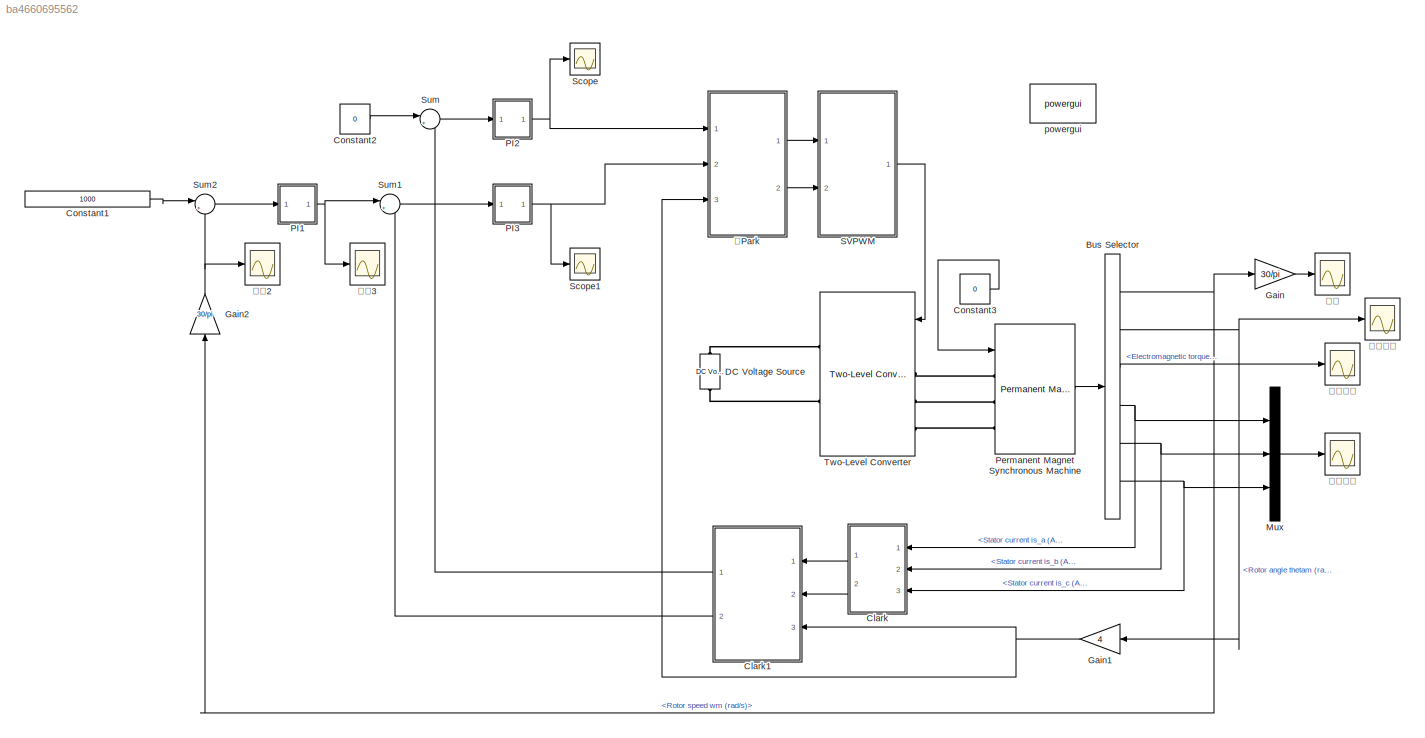
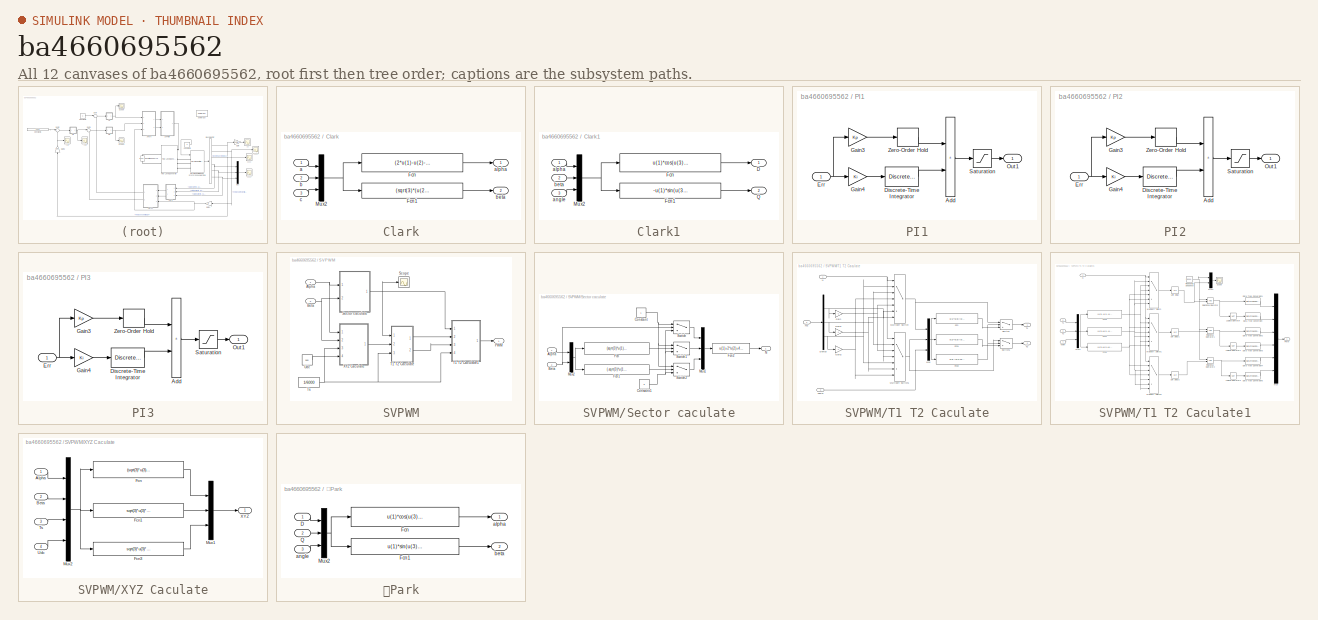
[diagram: thumbnail index - all 12 canvases of the model, root first then tree order]
MODEL slx_ba4660695562
KIND model
CONFIG AbsTol = auto
CONFIG EnableMultiTasking = on
CONFIG FixedStep = auto
CONFIG MaxStep = auto
CONFIG MinStep = auto
CONFIG RelTol = 1e-3
CONFIG SampleTimeConstraint = Unconstrained
CONFIG SolverName = VariableStepAuto
CONFIG StartTime = 0.0
CONFIG StopTime = 0.5
BLOCK [BusSelector] Bus Selector
  OutputSignals = Rotor speed wm (rad/s),Rotor angle thetam (rad),Electromagnetic torque Te (N*m),Stator current is_a (A),Stator current is_b (A),Stator current is_c (A)
  Ports = [1, 6]
BLOCK [SubSystem] Clark
  NameLocation = top
  Ports = [3, 2]
  RequestExecContextInheritance = off
BLOCK [Fcn] Clark/Fcn
  Expr = (2*u(1)-u(2)-u(3))/3
BLOCK [Fcn] Clark/Fcn1
  Expr = (sqrt(3)*(u(2)-u(3)))/3
BLOCK [Mux] Clark/Mux2
  DisplayOption = bar
  Inputs = 3
  Ports = [3, 1]
BLOCK [Inport] Clark/a
BLOCK [Outport] Clark/alpha
BLOCK [Inport] Clark/b
  Port = 2
BLOCK [Outport] Clark/beta
  Port = 2
BLOCK [Inport] Clark/c
  Port = 3
BLOCK [SubSystem] Clark1
  NameLocation = top
  Ports = [3, 2]
  RequestExecContextInheritance = off
BLOCK [Outport] Clark1/D
BLOCK [Fcn] Clark1/Fcn
  Expr = u(1)*cos(u(3))+u(2)*sin(u(3))
BLOCK [Fcn] Clark1/Fcn1
  Expr = -u(1)*sin(u(3))+u(2)*cos(u(3))
BLOCK [Mux] Clark1/Mux2
  DisplayOption = bar
  Inputs = 3
  Ports = [3, 1]
BLOCK [Outport] Clark1/Q
  Port = 2
BLOCK [Inport] Clark1/alpha
BLOCK [Inport] Clark1/angle
  Port = 3
BLOCK [Inport] Clark1/beta
  Port = 2
BLOCK [Constant] Constant1
  Value = 1000
BLOCK [Constant] Constant2
  Value = 0
BLOCK [Constant] Constant3
  Value = 0
BLOCK [Reference] DC Voltage Source  REF=spsDCVoltageSourceLib/DC Voltage Source
  NameLocation = right
  Ports = [0, 0, 0, 0, 0, 1, 1]
  SourceBlock = spsDCVoltageSourceLib/DC Voltage Source
  SourceProductBaseCode = PS
  SourceType = DC Voltage Source
BLOCK [Gain] Gain
  Gain = 30/pi
BLOCK [Gain] Gain1
  Gain = 4
  NameLocation = top
BLOCK [Gain] Gain2
  Gain = 30/pi
  NameLocation = right
BLOCK [Mux] Mux
  DisplayOption = bar
  Inputs = 3
  Ports = [3, 1]
BLOCK [SubSystem] PI1
  Ports = [1, 1]
  RequestExecContextInheritance = off
BLOCK [Sum] PI1/Add
  IconShape = rectangular
  Ports = [2, 1]
BLOCK [DiscreteIntegrator] PI1/Discrete-Time Integrator
  ICPrevOutput = DiscIntNeverNeededParam
  ICPrevScaledInput = DiscIntNeverNeededParam
  InitialCondition = Init
  LimitOutput = on
  LowerSaturationLimit = Lowerlimit
  Ports = [1, 1]
  SampleTime = Ts
  UpperSaturationLimit = Upperlimit
BLOCK [Inport] PI1/Err
BLOCK [Gain] PI1/Gain3
  Gain = Kp
BLOCK [Gain] PI1/Gain4
  Gain = Ki
BLOCK [Outport] PI1/Out1
BLOCK [Saturate] PI1/Saturation
  LowerLimit = Lowerlimit
  UpperLimit = Upperlimit
BLOCK [ZeroOrderHold] PI1/Zero-Order Hold
  SampleTime = Ts
BLOCK [SubSystem] PI2
  Ports = [1, 1]
  RequestExecContextInheritance = off
BLOCK [Sum] PI2/Add
  IconShape = rectangular
  Ports = [2, 1]
BLOCK [DiscreteIntegrator] PI2/Discrete-Time Integrator
  ICPrevOutput = DiscIntNeverNeededParam
  ICPrevScaledInput = DiscIntNeverNeededParam
  InitialCondition = Init
  LimitOutput = on
  LowerSaturationLimit = Lowerlimit
  Ports = [1, 1]
  SampleTime = Ts
  UpperSaturationLimit = Upperlimit
BLOCK [Inport] PI2/Err
BLOCK [Gain] PI2/Gain3
  Gain = Kp
BLOCK [Gain] PI2/Gain4
  Gain = Ki
BLOCK [Outport] PI2/Out1
BLOCK [Saturate] PI2/Saturation
  LowerLimit = Lowerlimit
  UpperLimit = Upperlimit
BLOCK [ZeroOrderHold] PI2/Zero-Order Hold
  SampleTime = Ts
BLOCK [SubSystem] PI3
  Ports = [1, 1]
  RequestExecContextInheritance = off
BLOCK [Sum] PI3/Add
  IconShape = rectangular
  Ports = [2, 1]
BLOCK [DiscreteIntegrator] PI3/Discrete-Time Integrator
  ICPrevOutput = DiscIntNeverNeededParam
  ICPrevScaledInput = DiscIntNeverNeededParam
  InitialCondition = Init
  LimitOutput = on
  LowerSaturationLimit = Lowerlimit
  Ports = [1, 1]
  SampleTime = Ts
  UpperSaturationLimit = Upperlimit
BLOCK [Inport] PI3/Err
BLOCK [Gain] PI3/Gain3
  Gain = Kp
BLOCK [Gain] PI3/Gain4
  Gain = Ki
BLOCK [Outport] PI3/Out1
BLOCK [Saturate] PI3/Saturation
  LowerLimit = Lowerlimit
  UpperLimit = Upperlimit
BLOCK [ZeroOrderHold] PI3/Zero-Order Hold
  SampleTime = Ts
BLOCK [Reference] Permanent Magnet Synchronous Machine  REF=spsPermanentMagnetSynchronousMachineLib/Permanent Magnet
Synchronous Machine
  Ports = [1, 1, 0, 0, 0, 3]
  SourceBlock = spsPermanentMagnetSynchronousMachineLib/Permanent Magnet\nSynchronous Machine
  SourceProductBaseCode = PS
  SourceType = Permanent Magnet Synchronous Machine
BLOCK [SubSystem] SVPWM
  Ports = [2, 1]
  RequestExecContextInheritance = off
BLOCK [Inport] SVPWM/Alpha
BLOCK [Inport] SVPWM/Beta
  Port = 2
BLOCK [Outport] SVPWM/PWM
BLOCK [Scope] SVPWM/Scope
  Floating = off
  NumInputPorts = 1
  Ports = [1]
  ScopeSpecificationString = Simulink.scopes.TimeScopeBlockCfg('CurrentConfiguration', extmgr.ConfigurationSet(extmgr.Configuration('Core','General UI',true),extmgr.Configuration('Core','Source UI',true),extmgr.Configuration('Sources','WiredSimulink',true,'DataLoggingVariableName','ScopeData6'),extmgr.Configuration('Visuals','Time Domain',true,'SerializedDisplays',{struct('MinYLimReal','0.375','MaxYLimReal','6.625','YLabelRea...<+1356ch>
BLOCK [SubSystem] SVPWM/Sector caculate
  Ports = [2, 1]
  RequestExecContextInheritance = off
BLOCK [Inport] SVPWM/Sector caculate/Alpha
BLOCK [Inport] SVPWM/Sector caculate/Beta
  Port = 2
BLOCK [Constant] SVPWM/Sector caculate/Constant
BLOCK [Constant] SVPWM/Sector caculate/Constant1
  Value = 0
BLOCK [Fcn] SVPWM/Sector caculate/Fcn
  Expr = (sqrt(3)*u(1)-u(2))/2
BLOCK [Fcn] SVPWM/Sector caculate/Fcn1
  Expr = (-sqrt(3)*u(1)-u(2))/2
BLOCK [Fcn] SVPWM/Sector caculate/Fcn2
  Expr = u(1)+2*u(2)+4*u(3)
BLOCK [Mux] SVPWM/Sector caculate/Mux1
  DisplayOption = bar
  Inputs = 3
  Ports = [3, 1]
BLOCK [Mux] SVPWM/Sector caculate/Mux2
  DisplayOption = bar
  Inputs = 2
  Ports = [2, 1]
BLOCK [Outport] SVPWM/Sector caculate/N
BLOCK [Switch] SVPWM/Sector caculate/Switch
  Criteria = u2 > Threshold
  InputSameDT = off
  SaturateOnIntegerOverflow = off
BLOCK [Switch] SVPWM/Sector caculate/Switch1
  Criteria = u2 > Threshold
  InputSameDT = off
  SaturateOnIntegerOverflow = off
BLOCK [Switch] SVPWM/Sector caculate/Switch2
  Criteria = u2 > Threshold
  InputSameDT = off
  SaturateOnIntegerOverflow = off
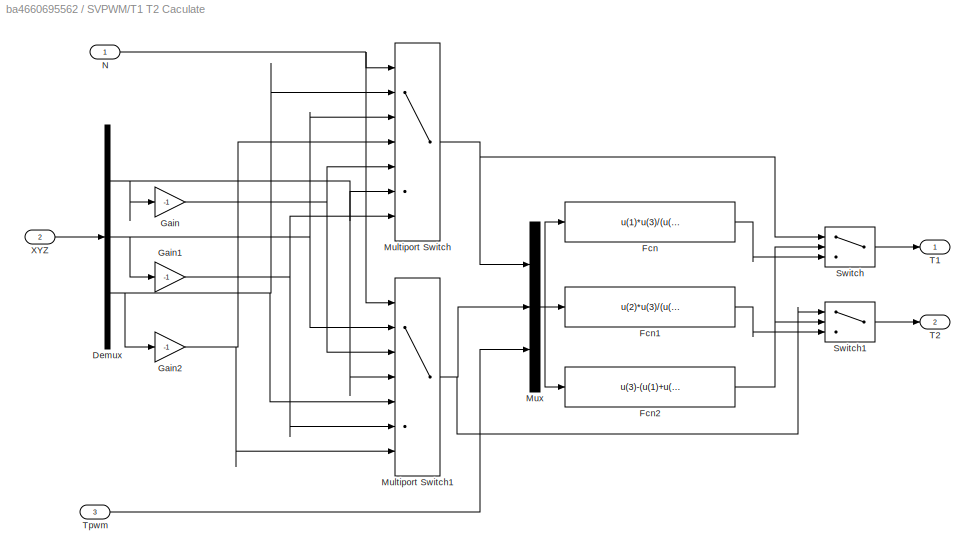
BLOCK [SubSystem] SVPWM/T1 T2 Caculate
  Ports = [3, 2]
  RequestExecContextInheritance = off
BLOCK [Demux] SVPWM/T1 T2 Caculate/Demux
  Outputs = 3
  Ports = [1, 3]
BLOCK [Fcn] SVPWM/T1 T2 Caculate/Fcn
  Expr = u(1)*u(3)/(u(1)+u(2))
BLOCK [Fcn] SVPWM/T1 T2 Caculate/Fcn1
  Expr = u(2)*u(3)/(u(1)+u(2))
BLOCK [Fcn] SVPWM/T1 T2 Caculate/Fcn2
  Expr = u(3)-(u(1)+u(2))
BLOCK [Gain] SVPWM/T1 T2 Caculate/Gain
  Gain = -1
BLOCK [Gain] SVPWM/T1 T2 Caculate/Gain1
  Gain = -1
BLOCK [Gain] SVPWM/T1 T2 Caculate/Gain2
  Gain = -1
BLOCK [MultiPortSwitch] SVPWM/T1 T2 Caculate/Multiport Switch
  InputSameDT = off
  Inputs = 6
  Ports = [7, 1]
  SaturateOnIntegerOverflow = off
BLOCK [MultiPortSwitch] SVPWM/T1 T2 Caculate/Multiport Switch1
  InputSameDT = off
  Inputs = 6
  Ports = [7, 1]
  SaturateOnIntegerOverflow = off
BLOCK [Mux] SVPWM/T1 T2 Caculate/Mux
  DisplayOption = bar
  Inputs = 3
  Ports = [3, 1]
BLOCK [Inport] SVPWM/T1 T2 Caculate/N
BLOCK [Switch] SVPWM/T1 T2 Caculate/Switch
  Criteria = u2 > Threshold
  InputSameDT = off
  SaturateOnIntegerOverflow = off
BLOCK [Switch] SVPWM/T1 T2 Caculate/Switch1
  Criteria = u2 > Threshold
  InputSameDT = off
  SaturateOnIntegerOverflow = off
BLOCK [Outport] SVPWM/T1 T2 Caculate/T1
BLOCK [Outport] SVPWM/T1 T2 Caculate/T2
  Port = 2
BLOCK [Inport] SVPWM/T1 T2 Caculate/Tpwm
  Port = 3
BLOCK [Inport] SVPWM/T1 T2 Caculate/XYZ
  Port = 2
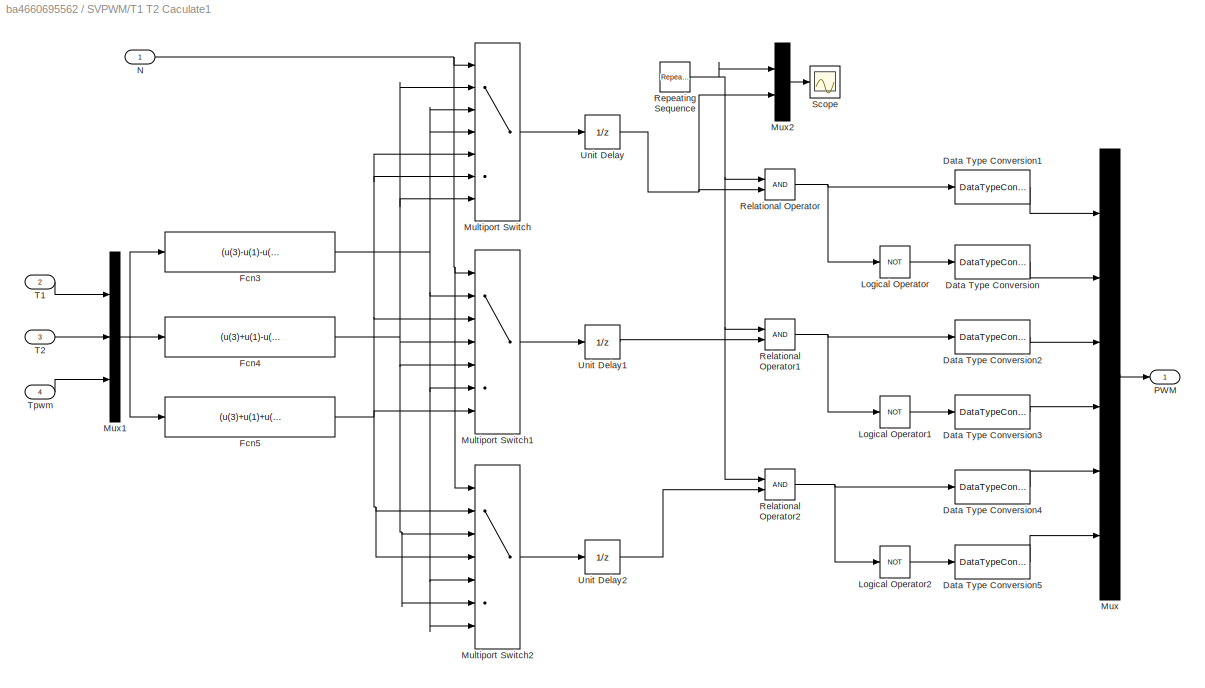
BLOCK [SubSystem] SVPWM/T1 T2 Caculate1
  Ports = [4, 1]
  RequestExecContextInheritance = off
BLOCK [DataTypeConversion] SVPWM/T1 T2 Caculate1/Data Type Conversion
  OutDataTypeStr = double
  RndMeth = Floor
  SaturateOnIntegerOverflow = off
BLOCK [DataTypeConversion] SVPWM/T1 T2 Caculate1/Data Type Conversion1
  OutDataTypeStr = double
  RndMeth = Floor
  SaturateOnIntegerOverflow = off
BLOCK [DataTypeConversion] SVPWM/T1 T2 Caculate1/Data Type Conversion2
  OutDataTypeStr = double
  RndMeth = Floor
  SaturateOnIntegerOverflow = off
BLOCK [DataTypeConversion] SVPWM/T1 T2 Caculate1/Data Type Conversion3
  OutDataTypeStr = double
  RndMeth = Floor
  SaturateOnIntegerOverflow = off
BLOCK [DataTypeConversion] SVPWM/T1 T2 Caculate1/Data Type Conversion4
  OutDataTypeStr = double
  RndMeth = Floor
  SaturateOnIntegerOverflow = off
BLOCK [DataTypeConversion] SVPWM/T1 T2 Caculate1/Data Type Conversion5
  OutDataTypeStr = double
  RndMeth = Floor
  SaturateOnIntegerOverflow = off
BLOCK [Fcn] SVPWM/T1 T2 Caculate1/Fcn3
  Expr = (u(3)-u(1)-u(2))/4
BLOCK [Fcn] SVPWM/T1 T2 Caculate1/Fcn4
  Expr = (u(3)+u(1)-u(2))/4
BLOCK [Fcn] SVPWM/T1 T2 Caculate1/Fcn5
  Expr = (u(3)+u(1)+u(2))/4
BLOCK [Logic] SVPWM/T1 T2 Caculate1/Logical Operator
  AllPortsSameDT = off
  Operator = NOT
  OutDataTypeStr = boolean
  Ports = [1, 1]
BLOCK [Logic] SVPWM/T1 T2 Caculate1/Logical Operator1
  AllPortsSameDT = off
  Operator = NOT
  OutDataTypeStr = boolean
  Ports = [1, 1]
BLOCK [Logic] SVPWM/T1 T2 Caculate1/Logical Operator2
  AllPortsSameDT = off
  Operator = NOT
  OutDataTypeStr = boolean
  Ports = [1, 1]
BLOCK [MultiPortSwitch] SVPWM/T1 T2 Caculate1/Multiport Switch
  InputSameDT = off
  Inputs = 6
  Ports = [7, 1]
  SaturateOnIntegerOverflow = off
BLOCK [MultiPortSwitch] SVPWM/T1 T2 Caculate1/Multiport Switch1
  InputSameDT = off
  Inputs = 6
  Ports = [7, 1]
  SaturateOnIntegerOverflow = off
BLOCK [MultiPortSwitch] SVPWM/T1 T2 Caculate1/Multiport Switch2
  InputSameDT = off
  Inputs = 6
  Ports = [7, 1]
  SaturateOnIntegerOverflow = off
BLOCK [Mux] SVPWM/T1 T2 Caculate1/Mux
  DisplayOption = bar
  Inputs = 6
  Ports = [6, 1]
BLOCK [Mux] SVPWM/T1 T2 Caculate1/Mux1
  DisplayOption = bar
  Inputs = 3
  Ports = [3, 1]
BLOCK [Mux] SVPWM/T1 T2 Caculate1/Mux2
  DisplayOption = bar
  Inputs = 2
  Ports = [2, 1]
BLOCK [Inport] SVPWM/T1 T2 Caculate1/N
BLOCK [Outport] SVPWM/T1 T2 Caculate1/PWM
BLOCK [RelationalOperator] SVPWM/T1 T2 Caculate1/Relational Operator
  InputSameDT = off
  OutDataTypeStr = boolean
  Ports = [2, 1]
BLOCK [RelationalOperator] SVPWM/T1 T2 Caculate1/Relational Operator1
  InputSameDT = off
  OutDataTypeStr = boolean
  Ports = [2, 1]
BLOCK [RelationalOperator] SVPWM/T1 T2 Caculate1/Relational Operator2
  InputSameDT = off
  OutDataTypeStr = boolean
  Ports = [2, 1]
BLOCK [Reference] SVPWM/T1 T2 Caculate1/Repeating Sequence  REF=simulink/Sources/Repeating
Sequence
  Ports = [0, 1]
  SourceBlock = simulink/Sources/Repeating\nSequence
  SourceProductBaseCode = SL
  SourceType = Repeating table
BLOCK [Scope] SVPWM/T1 T2 Caculate1/Scope
  Floating = off
  NumInputPorts = 1
  Ports = [1]
  ScopeSpecificationString = Simulink.scopes.TimeScopeBlockCfg('CurrentConfiguration', extmgr.ConfigurationSet(extmgr.Configuration('Core','General UI',true),extmgr.Configuration('Core','Source UI',true),extmgr.Configuration('Sources','WiredSimulink',true,'DataLoggingVariableName','ScopeData5'),extmgr.Configuration('Visuals','Time Domain',true,'SerializedDisplays',{struct('MinYLimReal','-0.00001','MaxYLimReal','0.00009','YLab...<+1446ch>
BLOCK [Inport] SVPWM/T1 T2 Caculate1/T1
  Port = 2
BLOCK [Inport] SVPWM/T1 T2 Caculate1/T2
  Port = 3
BLOCK [Inport] SVPWM/T1 T2 Caculate1/Tpwm
  Port = 4
BLOCK [UnitDelay] SVPWM/T1 T2 Caculate1/Unit Delay
  HasFrameUpgradeWarning = on
  SampleTime = 1/6000
BLOCK [UnitDelay] SVPWM/T1 T2 Caculate1/Unit Delay1
  HasFrameUpgradeWarning = on
  SampleTime = 1/6000
BLOCK [UnitDelay] SVPWM/T1 T2 Caculate1/Unit Delay2
  HasFrameUpgradeWarning = on
  SampleTime = 1/6000
BLOCK [Constant] SVPWM/Ts
  Value = 1/6000
BLOCK [Constant] SVPWM/Udc
  Value = 560
BLOCK [SubSystem] SVPWM/XYZ Caculate
  Ports = [4, 1]
  RequestExecContextInheritance = off
BLOCK [Inport] SVPWM/XYZ Caculate/Alpha
BLOCK [Inport] SVPWM/XYZ Caculate/Beta
  Port = 2
BLOCK [Fcn] SVPWM/XYZ Caculate/Fcn
  Expr = (sqrt(3)*u(3)*u(2))/u(4)
BLOCK [Fcn] SVPWM/XYZ Caculate/Fcn1
  Expr = sqrt(3)*u(3)*(sqrt(3)*u(1)+u(2))/(2*u(4))
BLOCK [Fcn] SVPWM/XYZ Caculate/Fcn3
  Expr = sqrt(3)*u(3)*(-sqrt(3)*u(1)+u(2))/(2*u(4))
BLOCK [Mux] SVPWM/XYZ Caculate/Mux1
  DisplayOption = bar
  Inputs = 3
  Ports = [3, 1]
BLOCK [Mux] SVPWM/XYZ Caculate/Mux2
  DisplayOption = bar
  Ports = [4, 1]
BLOCK [Inport] SVPWM/XYZ Caculate/Ts
  Port = 3
BLOCK [Inport] SVPWM/XYZ Caculate/Udc
  Port = 4
BLOCK [Outport] SVPWM/XYZ Caculate/XYZ
BLOCK [Scope] Scope
  Floating = off
  NumInputPorts = 1
  Ports = [1]
  ScopeSpecificationString = Simulink.scopes.TimeScopeBlockCfg('CurrentConfiguration', extmgr.ConfigurationSet(extmgr.Configuration('Core','General UI',true),extmgr.Configuration('Core','Source UI',true),extmgr.Configuration('Sources','WiredSimulink',true,'DataLoggingVariableName','ScopeData1'),extmgr.Configuration('Visuals','Time Domain',true,'SerializedDisplays',{struct('MinYLimReal','-7.54619','MaxYLimReal','1.27339','YLab...<+1413ch>
BLOCK [Scope] Scope1
  Floating = off
  NumInputPorts = 1
  Ports = [1]
  ScopeSpecificationString = Simulink.scopes.TimeScopeBlockCfg('CurrentConfiguration', extmgr.ConfigurationSet(extmgr.Configuration('Core','General UI',true),extmgr.Configuration('Core','Source UI',true),extmgr.Configuration('Sources','WiredSimulink',true,'DataLoggingVariableName','ScopeData2'),extmgr.Configuration('Visuals','Time Domain',true),extmgr.Configuration('Tools','Plot Navigation',true),extmgr.Configuration('Tools',...<+40ch>
BLOCK [Sum] Sum
  Inputs = |+-
  Ports = [2, 1]
BLOCK [Sum] Sum1
  Inputs = |+-
  Ports = [2, 1]
BLOCK [Sum] Sum2
  Inputs = |+-
  Ports = [2, 1]
BLOCK [Reference] Two-Level Converter  REF=spsTwoLevelConverterLib/Two-Level Converter
  NameLocation = top
  Ports = [2, 0, 0, 0, 0, 3, 2]
  SourceBlock = spsTwoLevelConverterLib/Two-Level Converter
  SourceProductBaseCode = PS
  SourceType = Two-Level Converter
BLOCK [Reference] powergui  REF=spspowerguiLib/powergui
  Ports = []
  Priority = 1
  SourceBlock = spspowerguiLib/powergui
  SourceProductBaseCode = PS
  SourceType = PSB option menu block
BLOCK [SubSystem] 反Park
  Ports = [3, 2]
  RequestExecContextInheritance = off
BLOCK [Inport] 反Park/D
BLOCK [Fcn] 反Park/Fcn
  Expr = u(1)*cos(u(3))-u(2)*sin(u(3))
BLOCK [Fcn] 反Park/Fcn1
  Expr = u(1)*sin(u(3))+u(2)*cos(u(3))
BLOCK [Mux] 反Park/Mux2
  DisplayOption = bar
  Inputs = 3
  Ports = [3, 1]
BLOCK [Inport] 反Park/Q
  Port = 2
BLOCK [Outport] 反Park/alpha
BLOCK [Inport] 反Park/angle
  Port = 3
BLOCK [Outport] 反Park/beta
  Port = 2
BLOCK [Scope] 定子电流
  Floating = off
  NumInputPorts = 1
  Ports = [1]
  ScopeSpecificationString = Simulink.scopes.TimeScopeBlockCfg('CurrentConfiguration', extmgr.ConfigurationSet(extmgr.Configuration('Core','General UI',true),extmgr.Configuration('Core','Source UI',true),extmgr.Configuration('Sources','WiredSimulink',true,'DataLoggingVariableName','ScopeData3','DataLoggingSaveFormat','Array','DataLoggingDecimation','1','DataLoggingDecimateData',true),extmgr.Configuration('Visuals','Time Domai...<+1654ch>
BLOCK [Scope] 电磁转矩
  Floating = off
  NumInputPorts = 1
  Ports = [1]
  ScopeSpecificationString = Simulink.scopes.TimeScopeBlockCfg('CurrentConfiguration', extmgr.ConfigurationSet(extmgr.Configuration('Core','General UI',true),extmgr.Configuration('Core','Source UI',true),extmgr.Configuration('Sources','WiredSimulink',true,'DataLoggingVariableName','ScopeData2','DataLoggingSaveFormat','Array','DataLoggingDecimation','1','DataLoggingDecimateData',true),extmgr.Configuration('Visuals','Time Domai...<+1534ch>
BLOCK [Scope] 转子位置
  Floating = off
  NumInputPorts = 1
  Ports = [1]
  ScopeSpecificationString = Simulink.scopes.TimeScopeBlockCfg('CurrentConfiguration', extmgr.ConfigurationSet(extmgr.Configuration('Core','General UI',true),extmgr.Configuration('Core','Source UI',true),extmgr.Configuration('Sources','WiredSimulink',true,'DataLoggingVariableName','ScopeData1'),extmgr.Configuration('Visuals','Time Domain',true,'SerializedDisplays',{struct('MinYLimReal','-2.59532','MaxYLimReal','23.35787','YLa...<+1440ch>
BLOCK [Scope] 转速
  Floating = off
  NumInputPorts = 1
  Ports = [1]
  ScopeSpecificationString = Simulink.scopes.TimeScopeBlockCfg('CurrentConfiguration', extmgr.ConfigurationSet(extmgr.Configuration('Core','General UI',true),extmgr.Configuration('Core','Source UI',true),extmgr.Configuration('Sources','WiredSimulink',true),extmgr.Configuration('Visuals','Time Domain',true,'SerializedDisplays',{struct('MinYLimReal','340.02214','MaxYLimReal','452.38523','YLabelReal','','MinYLimMag','340.02214',...<+1461ch>
BLOCK [Scope] 转速2
  Floating = off
  NumInputPorts = 1
  Ports = [1]
  ScopeSpecificationString = Simulink.scopes.TimeScopeBlockCfg('CurrentConfiguration', extmgr.ConfigurationSet(extmgr.Configuration('Core','General UI',true),extmgr.Configuration('Core','Source UI',true),extmgr.Configuration('Sources','WiredSimulink',true,'DataLoggingVariableName','ScopeData4'),extmgr.Configuration('Visuals','Time Domain',true,'SerializedDisplays',{struct('MinYLimReal','-59.66931','MaxYLimReal','537.02376','Y...<+1454ch>
BLOCK [Scope] 转速3
  Floating = off
  NumInputPorts = 1
  Ports = [1]
  ScopeSpecificationString = Simulink.scopes.TimeScopeBlockCfg('CurrentConfiguration', extmgr.ConfigurationSet(extmgr.Configuration('Core','General UI',true),extmgr.Configuration('Core','Source UI',true),extmgr.Configuration('Sources','WiredSimulink',true,'DataLoggingVariableName','ScopeData7'),extmgr.Configuration('Visuals','Time Domain',true,'SerializedDisplays',{struct('MinYLimReal','29.999994','MaxYLimReal','30.000004','Y...<+1479ch>
NET Bus Selector:1 -> Gain2:1, Gain:1
NET Bus Selector:2 -> Gain1:1, 转子位置:1
LINE Bus Selector:3 -> 电磁转矩:1
NET Bus Selector:4 -> Clark:1, Mux:1
NET Bus Selector:5 -> Clark:2, Mux:2
NET Bus Selector:6 -> Clark:3, Mux:3
LINE Clark/Fcn1:1 -> Clark/beta:1
LINE Clark/Fcn:1 -> Clark/alpha:1
NET Clark/Mux2:1 -> Clark/Fcn1:1, Clark/Fcn:1
LINE Clark/a:1 -> Clark/Mux2:1
LINE Clark/b:1 -> Clark/Mux2:2
LINE Clark/c:1 -> Clark/Mux2:3
LINE Clark1/Fcn1:1 -> Clark1/Q:1
LINE Clark1/Fcn:1 -> Clark1/D:1
NET Clark1/Mux2:1 -> Clark1/Fcn1:1, Clark1/Fcn:1
LINE Clark1/alpha:1 -> Clark1/Mux2:1
LINE Clark1/angle:1 -> Clark1/Mux2:3
LINE Clark1/beta:1 -> Clark1/Mux2:2
LINE Clark1:1 -> Sum:2
LINE Clark1:2 -> Sum1:2
LINE Clark:1 -> Clark1:1
LINE Clark:2 -> Clark1:2
LINE Constant1:1 -> Sum2:1
LINE Constant2:1 -> Sum:1
LINE Constant3:1 -> Permanent Magnet Synchronous Machine:1
NET Gain1:1 -> Clark1:3, 反Park:3
NET Gain2:1 -> Sum2:2, 转速2:1
LINE Gain:1 -> 转速:1
LINE Mux:1 -> 定子电流:1
LINE PI1/Add:1 -> PI1/Saturation:1
LINE PI1/Discrete-Time Integrator:1 -> PI1/Add:2
NET PI1/Err:1 -> PI1/Gain3:1, PI1/Gain4:1
LINE PI1/Gain3:1 -> PI1/Zero-Order Hold:1
LINE PI1/Gain4:1 -> PI1/Discrete-Time Integrator:1
LINE PI1/Saturation:1 -> PI1/Out1:1
LINE PI1/Zero-Order Hold:1 -> PI1/Add:1
NET PI1:1 -> Sum1:1, 转速3:1
LINE PI2/Add:1 -> PI2/Saturation:1
LINE PI2/Discrete-Time Integrator:1 -> PI2/Add:2
NET PI2/Err:1 -> PI2/Gain3:1, PI2/Gain4:1
LINE PI2/Gain3:1 -> PI2/Zero-Order Hold:1
LINE PI2/Gain4:1 -> PI2/Discrete-Time Integrator:1
LINE PI2/Saturation:1 -> PI2/Out1:1
LINE PI2/Zero-Order Hold:1 -> PI2/Add:1
NET PI2:1 -> Scope:1, 反Park:1
LINE PI3/Add:1 -> PI3/Saturation:1
LINE PI3/Discrete-Time Integrator:1 -> PI3/Add:2
NET PI3/Err:1 -> PI3/Gain3:1, PI3/Gain4:1
LINE PI3/Gain3:1 -> PI3/Zero-Order Hold:1
LINE PI3/Gain4:1 -> PI3/Discrete-Time Integrator:1
LINE PI3/Saturation:1 -> PI3/Out1:1
LINE PI3/Zero-Order Hold:1 -> PI3/Add:1
NET PI3:1 -> Scope1:1, 反Park:2
LINE Permanent Magnet Synchronous Machine:1 -> Bus Selector:1
NET SVPWM/Alpha:1 -> SVPWM/Sector caculate:1, SVPWM/XYZ Caculate:1
NET SVPWM/Beta:1 -> SVPWM/Sector caculate:2, SVPWM/XYZ Caculate:2
LINE SVPWM/Sector caculate/Alpha:1 -> SVPWM/Sector caculate/Mux2:1
NET SVPWM/Sector caculate/Beta:1 -> SVPWM/Sector caculate/Mux2:2, SVPWM/Sector caculate/Switch:2
NET SVPWM/Sector caculate/Constant1:1 -> SVPWM/Sector caculate/Switch1:3, SVPWM/Sector caculate/Switch2:3, SVPWM/Sector caculate/Switch:3
NET SVPWM/Sector caculate/Constant:1 -> SVPWM/Sector caculate/Switch1:1, SVPWM/Sector caculate/Switch2:1, SVPWM/Sector caculate/Switch:1
LINE SVPWM/Sector caculate/Fcn1:1 -> SVPWM/Sector caculate/Switch2:2
LINE SVPWM/Sector caculate/Fcn2:1 -> SVPWM/Sector caculate/N:1
LINE SVPWM/Sector caculate/Fcn:1 -> SVPWM/Sector caculate/Switch1:2
LINE SVPWM/Sector caculate/Mux1:1 -> SVPWM/Sector caculate/Fcn2:1
NET SVPWM/Sector caculate/Mux2:1 -> SVPWM/Sector caculate/Fcn1:1, SVPWM/Sector caculate/Fcn:1
LINE SVPWM/Sector caculate/Switch1:1 -> SVPWM/Sector caculate/Mux1:2
LINE SVPWM/Sector caculate/Switch2:1 -> SVPWM/Sector caculate/Mux1:3
LINE SVPWM/Sector caculate/Switch:1 -> SVPWM/Sector caculate/Mux1:1
NET SVPWM/Sector caculate:1 -> SVPWM/Scope:1, SVPWM/T1 T2 Caculate1:1, SVPWM/T1 T2 Caculate:1
NET SVPWM/T1 T2 Caculate/Demux:1 -> SVPWM/T1 T2 Caculate/Gain:1, SVPWM/T1 T2 Caculate/Multiport Switch1:4, SVPWM/T1 T2 Caculate/Multiport Switch:6
NET SVPWM/T1 T2 Caculate/Demux:2 -> SVPWM/T1 T2 Caculate/Gain1:1, SVPWM/T1 T2 Caculate/Multiport Switch1:2, SVPWM/T1 T2 Caculate/Multiport Switch:3
NET SVPWM/T1 T2 Caculate/Demux:3 -> SVPWM/T1 T2 Caculate/Gain2:1, SVPWM/T1 T2 Caculate/Multiport Switch1:5, SVPWM/T1 T2 Caculate/Multiport Switch:2
LINE SVPWM/T1 T2 Caculate/Fcn1:1 -> SVPWM/T1 T2 Caculate/Switch1:3
NET SVPWM/T1 T2 Caculate/Fcn2:1 -> SVPWM/T1 T2 Caculate/Switch1:2, SVPWM/T1 T2 Caculate/Switch:2
LINE SVPWM/T1 T2 Caculate/Fcn:1 -> SVPWM/T1 T2 Caculate/Switch:3
NET SVPWM/T1 T2 Caculate/Gain1:1 -> SVPWM/T1 T2 Caculate/Multiport Switch1:6, SVPWM/T1 T2 Caculate/Multiport Switch:7
NET SVPWM/T1 T2 Caculate/Gain2:1 -> SVPWM/T1 T2 Caculate/Multiport Switch1:7, SVPWM/T1 T2 Caculate/Multiport Switch:4
NET SVPWM/T1 T2 Caculate/Gain:1 -> SVPWM/T1 T2 Caculate/Multiport Switch1:3, SVPWM/T1 T2 Caculate/Multiport Switch:5
NET SVPWM/T1 T2 Caculate/Multiport Switch1:1 -> SVPWM/T1 T2 Caculate/Mux:2, SVPWM/T1 T2 Caculate/Switch1:1
NET SVPWM/T1 T2 Caculate/Multiport Switch:1 -> SVPWM/T1 T2 Caculate/Mux:1, SVPWM/T1 T2 Caculate/Switch:1
NET SVPWM/T1 T2 Caculate/Mux:1 -> SVPWM/T1 T2 Caculate/Fcn1:1, SVPWM/T1 T2 Caculate/Fcn2:1, SVPWM/T1 T2 Caculate/Fcn:1
NET SVPWM/T1 T2 Caculate/N:1 -> SVPWM/T1 T2 Caculate/Multiport Switch1:1, SVPWM/T1 T2 Caculate/Multiport Switch:1
LINE SVPWM/T1 T2 Caculate/Switch1:1 -> SVPWM/T1 T2 Caculate/T2:1
LINE SVPWM/T1 T2 Caculate/Switch:1 -> SVPWM/T1 T2 Caculate/T1:1
LINE SVPWM/T1 T2 Caculate/Tpwm:1 -> SVPWM/T1 T2 Caculate/Mux:3
LINE SVPWM/T1 T2 Caculate/XYZ:1 -> SVPWM/T1 T2 Caculate/Demux:1
LINE SVPWM/T1 T2 Caculate1/Data Type Conversion1:1 -> SVPWM/T1 T2 Caculate1/Mux:1
LINE SVPWM/T1 T2 Caculate1/Data Type Conversion2:1 -> SVPWM/T1 T2 Caculate1/Mux:3
LINE SVPWM/T1 T2 Caculate1/Data Type Conversion3:1 -> SVPWM/T1 T2 Caculate1/Mux:4
LINE SVPWM/T1 T2 Caculate1/Data Type Conversion4:1 -> SVPWM/T1 T2 Caculate1/Mux:5
LINE SVPWM/T1 T2 Caculate1/Data Type Conversion5:1 -> SVPWM/T1 T2 Caculate1/Mux:6
LINE SVPWM/T1 T2 Caculate1/Data Type Conversion:1 -> SVPWM/T1 T2 Caculate1/Mux:2
NET SVPWM/T1 T2 Caculate1/Fcn3:1 -> SVPWM/T1 T2 Caculate1/Multiport Switch1:2, SVPWM/T1 T2 Caculate1/Multiport Switch1:6, SVPWM/T1 T2 Caculate1/Multiport Switch2:5, SVPWM/T1 T2 Caculate1/Multiport Switch2:7, SVPWM/T1 T2 Caculate1/Multiport Switch:3, SVPWM/T1 T2 Caculate1/Multiport Switch:4
NET SVPWM/T1 T2 Caculate1/Fcn4:1 -> SVPWM/T1 T2 Caculate1/Multiport Switch1:4, SVPWM/T1 T2 Caculate1/Multiport Switch1:5, SVPWM/T1 T2 Caculate1/Multiport Switch2:3, SVPWM/T1 T2 Caculate1/Multiport Switch2:6, SVPWM/T1 T2 Caculate1/Multiport Switch:2, SVPWM/T1 T2 Caculate1/Multiport Switch:7
NET SVPWM/T1 T2 Caculate1/Fcn5:1 -> SVPWM/T1 T2 Caculate1/Multiport Switch1:3, SVPWM/T1 T2 Caculate1/Multiport Switch1:7, SVPWM/T1 T2 Caculate1/Multiport Switch2:2, SVPWM/T1 T2 Caculate1/Multiport Switch2:4, SVPWM/T1 T2 Caculate1/Multiport Switch:5, SVPWM/T1 T2 Caculate1/Multiport Switch:6
LINE SVPWM/T1 T2 Caculate1/Logical Operator1:1 -> SVPWM/T1 T2 Caculate1/Data Type Conversion3:1
LINE SVPWM/T1 T2 Caculate1/Logical Operator2:1 -> SVPWM/T1 T2 Caculate1/Data Type Conversion5:1
LINE SVPWM/T1 T2 Caculate1/Logical Operator:1 -> SVPWM/T1 T2 Caculate1/Data Type Conversion:1
LINE SVPWM/T1 T2 Caculate1/Multiport Switch1:1 -> SVPWM/T1 T2 Caculate1/Unit Delay1:1
LINE SVPWM/T1 T2 Caculate1/Multiport Switch2:1 -> SVPWM/T1 T2 Caculate1/Unit Delay2:1
LINE SVPWM/T1 T2 Caculate1/Multiport Switch:1 -> SVPWM/T1 T2 Caculate1/Unit Delay:1
NET SVPWM/T1 T2 Caculate1/Mux1:1 -> SVPWM/T1 T2 Caculate1/Fcn3:1, SVPWM/T1 T2 Caculate1/Fcn4:1, SVPWM/T1 T2 Caculate1/Fcn5:1
LINE SVPWM/T1 T2 Caculate1/Mux2:1 -> SVPWM/T1 T2 Caculate1/Scope:1
LINE SVPWM/T1 T2 Caculate1/Mux:1 -> SVPWM/T1 T2 Caculate1/PWM:1
NET SVPWM/T1 T2 Caculate1/N:1 -> SVPWM/T1 T2 Caculate1/Multiport Switch1:1, SVPWM/T1 T2 Caculate1/Multiport Switch2:1, SVPWM/T1 T2 Caculate1/Multiport Switch:1
NET SVPWM/T1 T2 Caculate1/Relational Operator1:1 -> SVPWM/T1 T2 Caculate1/Data Type Conversion2:1, SVPWM/T1 T2 Caculate1/Logical Operator1:1
NET SVPWM/T1 T2 Caculate1/Relational Operator2:1 -> SVPWM/T1 T2 Caculate1/Data Type Conversion4:1, SVPWM/T1 T2 Caculate1/Logical Operator2:1
NET SVPWM/T1 T2 Caculate1/Relational Operator:1 -> SVPWM/T1 T2 Caculate1/Data Type Conversion1:1, SVPWM/T1 T2 Caculate1/Logical Operator:1
NET SVPWM/T1 T2 Caculate1/Repeating Sequence:1 -> SVPWM/T1 T2 Caculate1/Mux2:1, SVPWM/T1 T2 Caculate1/Relational Operator1:1, SVPWM/T1 T2 Caculate1/Relational Operator2:1, SVPWM/T1 T2 Caculate1/Relational Operator:1
LINE SVPWM/T1 T2 Caculate1/T1:1 -> SVPWM/T1 T2 Caculate1/Mux1:1
LINE SVPWM/T1 T2 Caculate1/T2:1 -> SVPWM/T1 T2 Caculate1/Mux1:2
LINE SVPWM/T1 T2 Caculate1/Tpwm:1 -> SVPWM/T1 T2 Caculate1/Mux1:3
LINE SVPWM/T1 T2 Caculate1/Unit Delay1:1 -> SVPWM/T1 T2 Caculate1/Relational Operator1:2
LINE SVPWM/T1 T2 Caculate1/Unit Delay2:1 -> SVPWM/T1 T2 Caculate1/Relational Operator2:2
NET SVPWM/T1 T2 Caculate1/Unit Delay:1 -> SVPWM/T1 T2 Caculate1/Mux2:2, SVPWM/T1 T2 Caculate1/Relational Operator:2
LINE SVPWM/T1 T2 Caculate1:1 -> SVPWM/PWM:1
LINE SVPWM/T1 T2 Caculate:1 -> SVPWM/T1 T2 Caculate1:2
LINE SVPWM/T1 T2 Caculate:2 -> SVPWM/T1 T2 Caculate1:3
NET SVPWM/Ts:1 -> SVPWM/T1 T2 Caculate1:4, SVPWM/T1 T2 Caculate:3, SVPWM/XYZ Caculate:3
LINE SVPWM/Udc:1 -> SVPWM/XYZ Caculate:4
LINE SVPWM/XYZ Caculate/Alpha:1 -> SVPWM/XYZ Caculate/Mux2:1
LINE SVPWM/XYZ Caculate/Beta:1 -> SVPWM/XYZ Caculate/Mux2:2
LINE SVPWM/XYZ Caculate/Fcn1:1 -> SVPWM/XYZ Caculate/Mux1:2
LINE SVPWM/XYZ Caculate/Fcn3:1 -> SVPWM/XYZ Caculate/Mux1:3
LINE SVPWM/XYZ Caculate/Fcn:1 -> SVPWM/XYZ Caculate/Mux1:1
LINE SVPWM/XYZ Caculate/Mux1:1 -> SVPWM/XYZ Caculate/XYZ:1
NET SVPWM/XYZ Caculate/Mux2:1 -> SVPWM/XYZ Caculate/Fcn1:1, SVPWM/XYZ Caculate/Fcn3:1, SVPWM/XYZ Caculate/Fcn:1
LINE SVPWM/XYZ Caculate/Ts:1 -> SVPWM/XYZ Caculate/Mux2:3
LINE SVPWM/XYZ Caculate/Udc:1 -> SVPWM/XYZ Caculate/Mux2:4
LINE SVPWM/XYZ Caculate:1 -> SVPWM/T1 T2 Caculate:2
LINE SVPWM:1 -> Two-Level Converter:1
LINE Sum1:1 -> PI3:1
LINE Sum2:1 -> PI1:1
LINE Sum:1 -> PI2:1
LINE 反Park/D:1 -> 反Park/Mux2:1
LINE 反Park/Fcn1:1 -> 反Park/beta:1
LINE 反Park/Fcn:1 -> 反Park/alpha:1
NET 反Park/Mux2:1 -> 反Park/Fcn1:1, 反Park/Fcn:1
LINE 反Park/Q:1 -> 反Park/Mux2:2
LINE 反Park/angle:1 -> 反Park/Mux2:3
LINE 反Park:1 -> SVPWM:1
LINE 反Park:2 -> SVPWM:2
PLINE DC Voltage Source:LConn1 -- Two-Level Converter:RConn2
PLINE DC Voltage Source:RConn1 -- Two-Level Converter:RConn1
PLINE Permanent Magnet Synchronous Machine:LConn1 -- Two-Level Converter:LConn1
PLINE Permanent Magnet Synchronous Machine:LConn2 -- Two-Level Converter:LConn2
PLINE Permanent Magnet Synchronous Machine:LConn3 -- Two-Level Converter:LConn3
note: NET lines group one-source signal fan-out (src -> all destinations, sorted); 1:1 wires keep LINE
